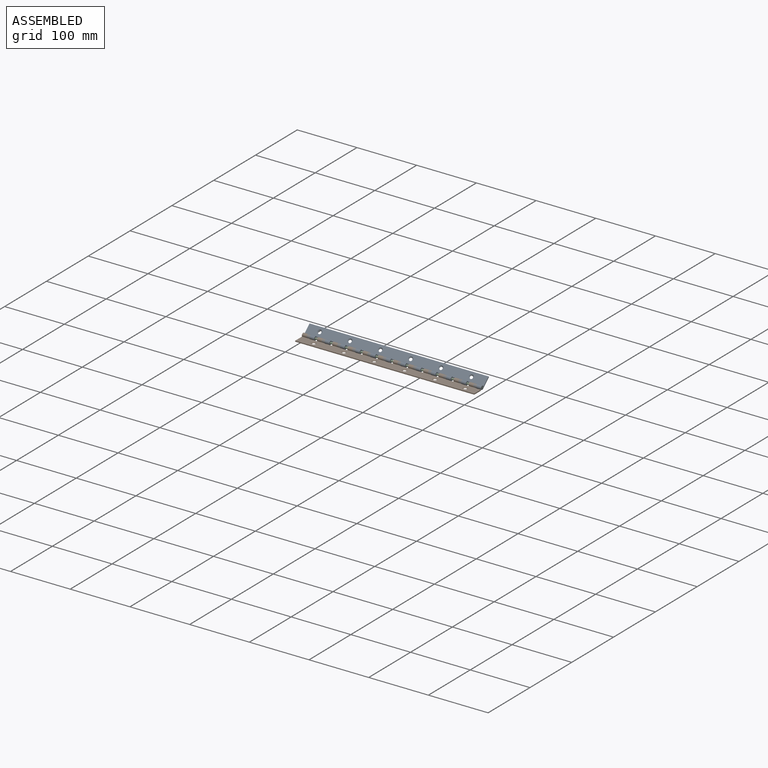
[diagram: assembled view]
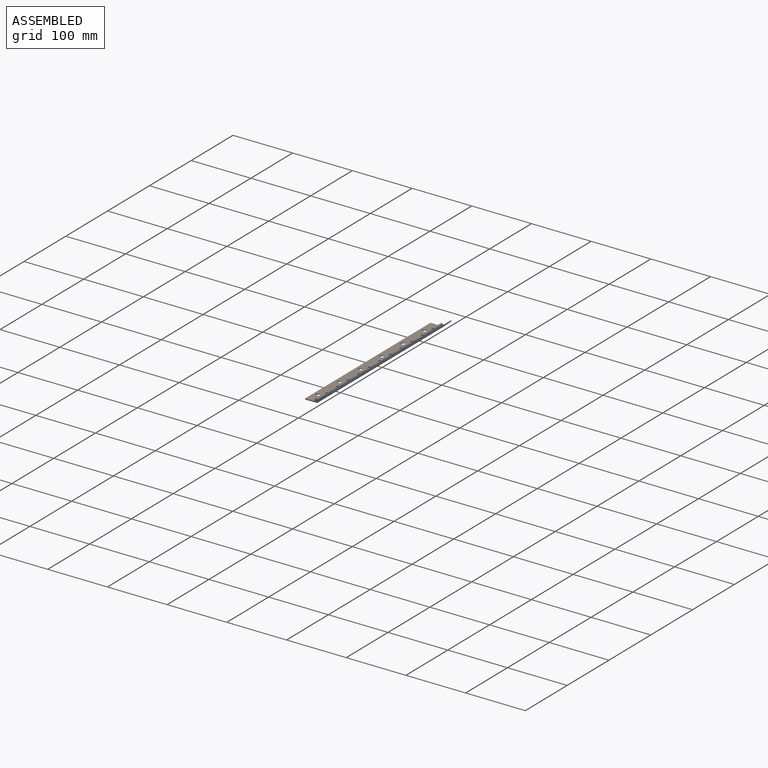
[diagram: assembled view, second angle]
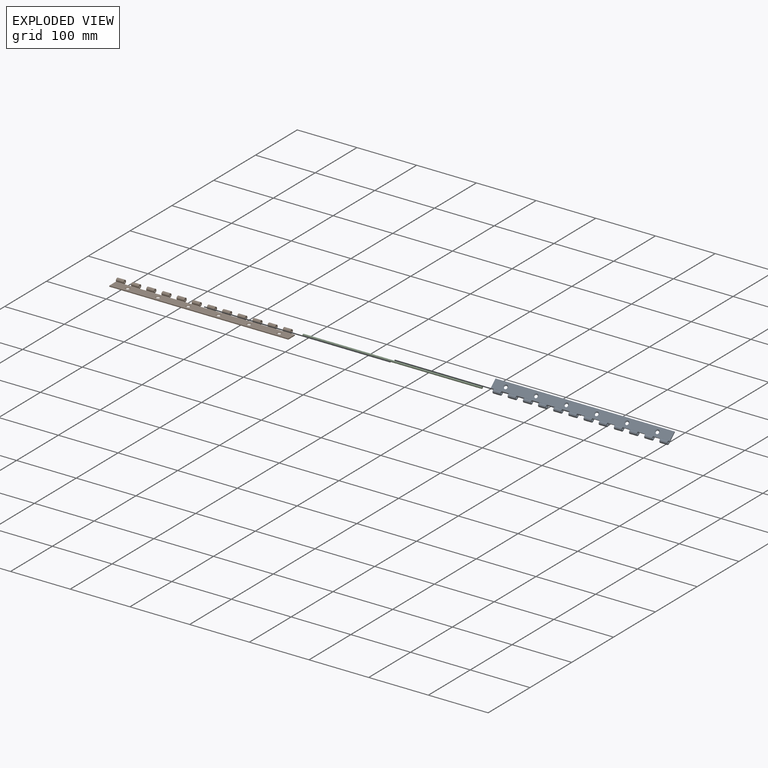
[diagram: exploded view]
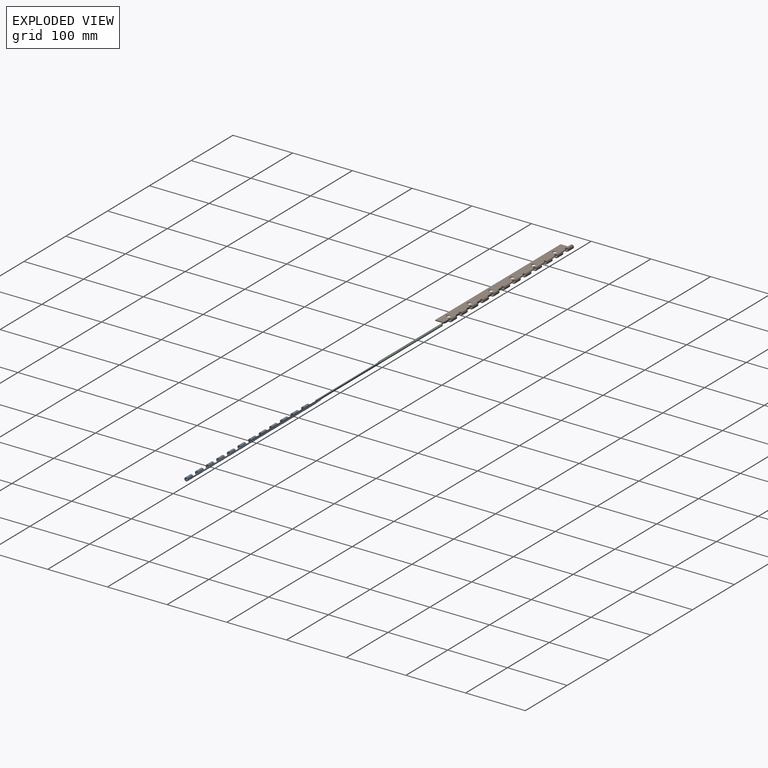
[diagram: exploded view, second angle]
ASSEMBLY  parts=3 mates=2
PART A: 82 faces, bbox 300x22.2x6.2 mm
  f0: cylinder r=1.59mm len=12.7mm, axis (-1,0,0), area 105.5mm2, adj f22,f34,f71,f75
  f1: cylinder r=1.59mm len=12.7mm, axis (-1,0,0), area 105.5mm2, adj f23,f34,f68,f72
  f2: cylinder r=1.59mm len=12.7mm, axis (-1,0,0), area 105.5mm2, adj f24,f34,f65,f69
  f3: cylinder r=1.59mm len=12.7mm, axis (-1,0,0), area 105.5mm2, adj f25,f34,f62,f66
  f4: cylinder r=1.59mm len=12.7mm, axis (-1,0,0), area 105.5mm2, adj f26,f34,f59,f63
  f5: cylinder r=1.59mm len=12.7mm, axis (-1,0,0), area 105.5mm2, adj f27,f34,f56,f60
  f6: cylinder r=1.59mm len=12.7mm, axis (-1,0,0), area 105.5mm2, adj f28,f34,f53,f57
  f7: cylinder r=1.59mm len=12.7mm, axis (-1,0,0), area 105.5mm2, adj f29,f34,f50,f54
  f8: cylinder r=1.59mm len=12.7mm, axis (-1,0,0), area 105.5mm2, adj f30,f34,f47,f51
  f9: cylinder r=1.59mm len=12.7mm, axis (-1,0,0), area 105.5mm2, adj f31,f34,f44,f48
  f10: cylinder r=1.59mm len=12.7mm, axis (-1,0,0), area 105.5mm2, adj f32,f34,f41,f45
  f11: cylinder r=3.11mm len=12.7mm, axis (-1,0,0), area 206.7mm2, adj f22,f36,f71,f75
  f12: cylinder r=3.11mm len=12.7mm, axis (-1,0,0), area 206.7mm2, adj f23,f36,f68,f72
  f13: cylinder r=3.11mm len=12.7mm, axis (-1,0,0), area 206.7mm2, adj f24,f36,f65,f69
  f14: cylinder r=3.11mm len=12.7mm, axis (-1,0,0), area 206.7mm2, adj f25,f36,f62,f66
  f15: cylinder r=3.11mm len=12.7mm, axis (-1,0,0), area 206.7mm2, adj f26,f36,f59,f63
  f16: cylinder r=3.11mm len=12.7mm, axis (-1,0,0), area 206.7mm2, adj f27,f36,f56,f60
  f17: cylinder r=3.11mm len=12.7mm, axis (-1,0,0), area 206.7mm2, adj f28,f36,f53,f57
  f18: cylinder r=3.11mm len=12.7mm, axis (-1,0,0), area 206.7mm2, adj f29,f36,f50,f54
  f19: cylinder r=3.11mm len=12.7mm, axis (-1,0,0), area 206.7mm2, adj f30,f36,f47,f51
  f20: cylinder r=3.11mm len=12.7mm, axis (-1,0,0), area 206.7mm2, adj f31,f36,f44,f48
  f21: cylinder r=3.11mm len=12.7mm, axis (-1,0,0), area 206.7mm2, adj f32,f36,f41,f45
  f22: plane 12.7x1.32mm, normal (0,0.5,-0.87), area 19.4mm2, adj f0,f11,f71,f75
  f23: plane 12.7x1.32mm, normal (0,0.5,-0.87), area 19.4mm2, adj f1,f12,f68,f72
  f24: plane 12.7x1.32mm, normal (0,0.5,-0.87), area 19.4mm2, adj f2,f13,f65,f69
  f25: plane 12.7x1.32mm, normal (0,0.5,-0.87), area 19.4mm2, adj f3,f14,f62,f66
  f26: plane 12.7x1.32mm, normal (0,0.5,-0.87), area 19.4mm2, adj f4,f15,f59,f63
  f27: plane 12.7x1.32mm, normal (0,0.5,-0.87), area 19.4mm2, adj f5,f16,f56,f60
  f28: plane 12.7x1.32mm, normal (0,0.5,-0.87), area 19.4mm2, adj f6,f17,f53,f57
  f29: plane 12.7x1.32mm, normal (0,0.5,-0.87), area 19.4mm2, adj f7,f18,f50,f54
  f30: plane 12.7x1.32mm, normal (0,0.5,-0.87), area 19.4mm2, adj f8,f19,f47,f51
  f31: plane 12.7x1.32mm, normal (0,0.5,-0.87), area 19.4mm2, adj f9,f20,f44,f48
  f32: plane 12.7x1.32mm, normal (0,0.5,-0.87), area 19.4mm2, adj f10,f21,f41,f45
  f33: cylinder r=1.59mm len=12.7mm, axis (-1,0,0), area 105.5mm2, adj f34,f38,f40,f74
  f34: plane 300x19.05mm, normal (0,0,1), area 4950.5mm2, adj f0,f1,f2,f3,f4,f5,f6,f7
  f35: plane 300x1.52mm, normal (0,-1,0), area 457.2mm2, adj f34,f36,f39,f40
  f36: plane 300x19.05mm, normal (0,0,-1), area 5112.1mm2, adj f11,f12,f13,f14,f15,f16,f17,f18
  f37: cylinder r=3.11mm len=12.7mm, axis (-1,0,0), area 206.7mm2, adj f36,f38,f40,f74
  f38: plane 12.7x1.32mm, normal (0,0.5,-0.87), area 19.4mm2, adj f33,f37,f40,f74
  f39: plane 15.81x1.52mm, normal (1,0,0), area 24.1mm2, adj f34,f35,f36,f42
  f40: plane 22.16x6.22mm, normal (-1,0,0), area 47.8mm2, adj f33,f34,f35,f36,f37,f38
  f41: plane 6.35x6.22mm, normal (1,0,0), area 23.7mm2, adj f10,f21,f32,f34,f36,f42
  f42: plane 7.9x1.52mm, normal (0,1,0), area 12mm2, adj f34,f36,f39,f41
  f43: plane 12.7x1.52mm, normal (0,1,0), area 19.4mm2, adj f34,f36,f44,f45
  f44: plane 6.35x6.22mm, normal (1,0,0), area 23.7mm2, adj f9,f20,f31,f34,f36,f43
  f45: plane 6.35x6.22mm, normal (-1,0,0), area 23.7mm2, adj f10,f21,f32,f34,f36,f43
  f46: plane 12.7x1.52mm, normal (0,1,0), area 19.4mm2, adj f34,f36,f47,f48
  f47: plane 6.35x6.22mm, normal (1,0,0), area 23.7mm2, adj f8,f19,f30,f34,f36,f46
  f48: plane 6.35x6.22mm, normal (-1,0,0), area 23.7mm2, adj f9,f20,f31,f34,f36,f46
  f49: plane 12.7x1.52mm, normal (0,1,0), area 19.4mm2, adj f34,f36,f50,f51
  f50: plane 6.35x6.22mm, normal (1,0,0), area 23.7mm2, adj f7,f18,f29,f34,f36,f49
  f51: plane 6.35x6.22mm, normal (-1,0,0), area 23.7mm2, adj f8,f19,f30,f34,f36,f49
  f52: plane 12.7x1.52mm, normal (0,1,0), area 19.4mm2, adj f34,f36,f53,f54
  f53: plane 6.35x6.22mm, normal (1,0,0), area 23.7mm2, adj f6,f17,f28,f34,f36,f52
  f54: plane 6.35x6.22mm, normal (-1,0,0), area 23.7mm2, adj f7,f18,f29,f34,f36,f52
  f55: plane 12.7x1.52mm, normal (0,1,0), area 19.4mm2, adj f34,f36,f56,f57
  f56: plane 6.35x6.22mm, normal (1,0,0), area 23.7mm2, adj f5,f16,f27,f34,f36,f55
  f57: plane 6.35x6.22mm, normal (-1,0,0), area 23.7mm2, adj f6,f17,f28,f34,f36,f55
  f58: plane 12.7x1.52mm, normal (0,1,0), area 19.4mm2, adj f34,f36,f59,f60
  f59: plane 6.35x6.22mm, normal (1,0,0), area 23.7mm2, adj f4,f15,f26,f34,f36,f58
  f60: plane 6.35x6.22mm, normal (-1,0,0), area 23.7mm2, adj f5,f16,f27,f34,f36,f58
  f61: plane 12.7x1.52mm, normal (0,1,0), area 19.4mm2, adj f34,f36,f62,f63
  f62: plane 6.35x6.22mm, normal (1,0,0), area 23.7mm2, adj f3,f14,f25,f34,f36,f61
  f63: plane 6.35x6.22mm, normal (-1,0,0), area 23.7mm2, adj f4,f15,f26,f34,f36,f61
  f64: plane 12.7x1.52mm, normal (0,1,0), area 19.4mm2, adj f34,f36,f65,f66
  f65: plane 6.35x6.22mm, normal (1,0,0), area 23.7mm2, adj f2,f13,f24,f34,f36,f64
  f66: plane 6.35x6.22mm, normal (-1,0,0), area 23.7mm2, adj f3,f14,f25,f34,f36,f64
  f67: plane 12.7x1.52mm, normal (0,1,0), area 19.4mm2, adj f34,f36,f68,f69
  f68: plane 6.35x6.22mm, normal (1,0,0), area 23.7mm2, adj f1,f12,f23,f34,f36,f67
  f69: plane 6.35x6.22mm, normal (-1,0,0), area 23.7mm2, adj f2,f13,f24,f34,f36,f67
  f70: plane 12.7x1.52mm, normal (0,1,0), area 19.4mm2, adj f34,f36,f71,f72
  f71: plane 6.35x6.22mm, normal (1,0,0), area 23.7mm2, adj f0,f11,f22,f34,f36,f70
  f72: plane 6.35x6.22mm, normal (-1,0,0), area 23.7mm2, adj f1,f12,f23,f34,f36,f70
  f73: plane 12.7x1.52mm, normal (0,1,0), area 19.4mm2, adj f34,f36,f74,f75
  f74: plane 6.35x6.22mm, normal (1,0,0), area 23.7mm2, adj f33,f34,f36,f37,f38,f73
  f75: plane 6.35x6.22mm, normal (-1,0,0), area 23.7mm2, adj f0,f11,f22,f34,f36,f73
  f76: cone r=1.83mm half-angle=41deg, axis (0,0,1), area 41.1mm2, adj f34,f36
  f77: cone r=1.83mm half-angle=41deg, axis (0,0,1), area 41.1mm2, adj f34,f36
  f78: cone r=1.83mm half-angle=41deg, axis (0,0,1), area 41.1mm2, adj f34,f36
  f79: cone r=1.83mm half-angle=41deg, axis (0,0,1), area 41.1mm2, adj f34,f36
  f80: cone r=1.83mm half-angle=41deg, axis (0,0,1), area 41.1mm2, adj f34,f36
  f81: cone r=1.83mm half-angle=41deg, axis (0,0,1), area 41.1mm2, adj f34,f36
PART B: same geometry as A
PART C: 3 faces, bbox 300x3.2x3.2 mm
  f0: plane 3.18x3.18mm, normal (1,0,0), area 7.9mm2, adj f1
  f1: cylinder r=1.59mm len=300mm, axis (-1,0,0), area 2992.4mm2, adj f0,f2
  f2: plane 3.18x3.18mm, normal (-1,0,0), area 7.9mm2, adj f1
PLACE A rot(axis=(0,-0.35,0.94),180deg) t=(300,0,0)mm
PLACE B at identity fixed
PLACE C rot(axis=(1,0,0),0deg) t=(0,0,0)mm
MATE fastened B.f11 <-> C.f1  axis (-1,0,0) through (0,0,0)mm
MATE revolute A.f11 <-> C.f1  axis (1,0,0) through (300,0,0)mm
